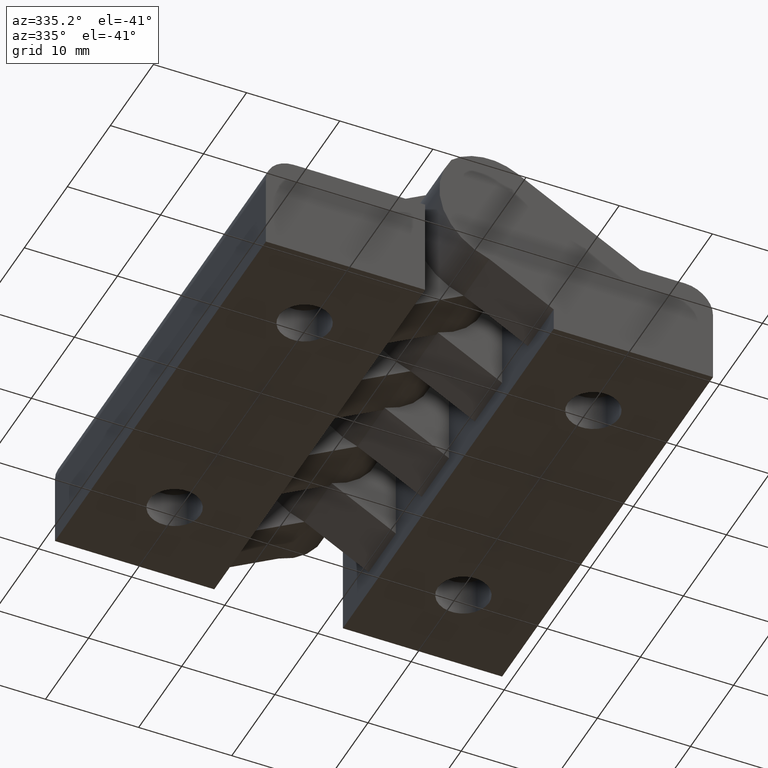
[diagram: clean part render]
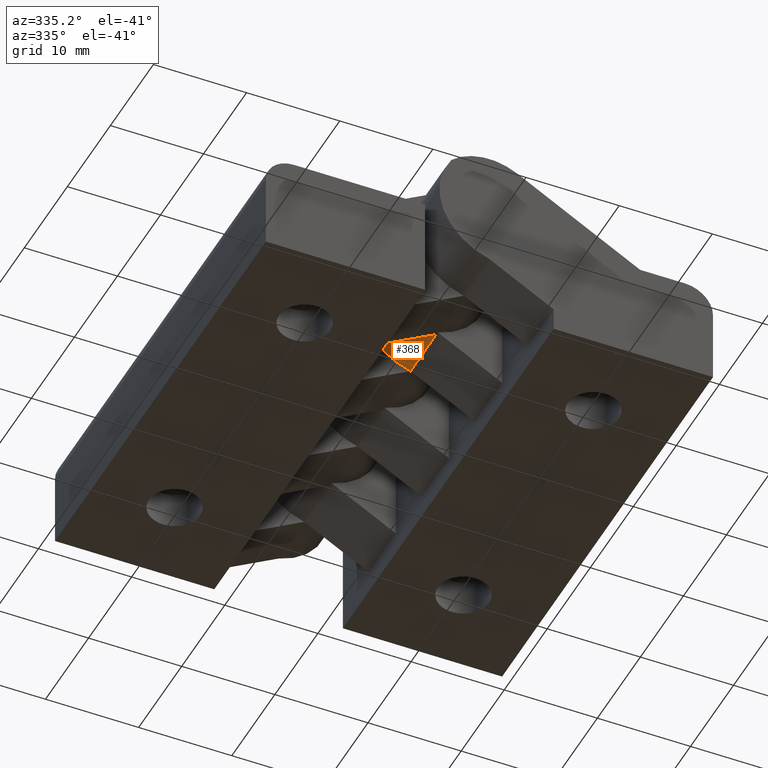
[diagram: same view with one face highlighted and labeled with its STEP entity id]
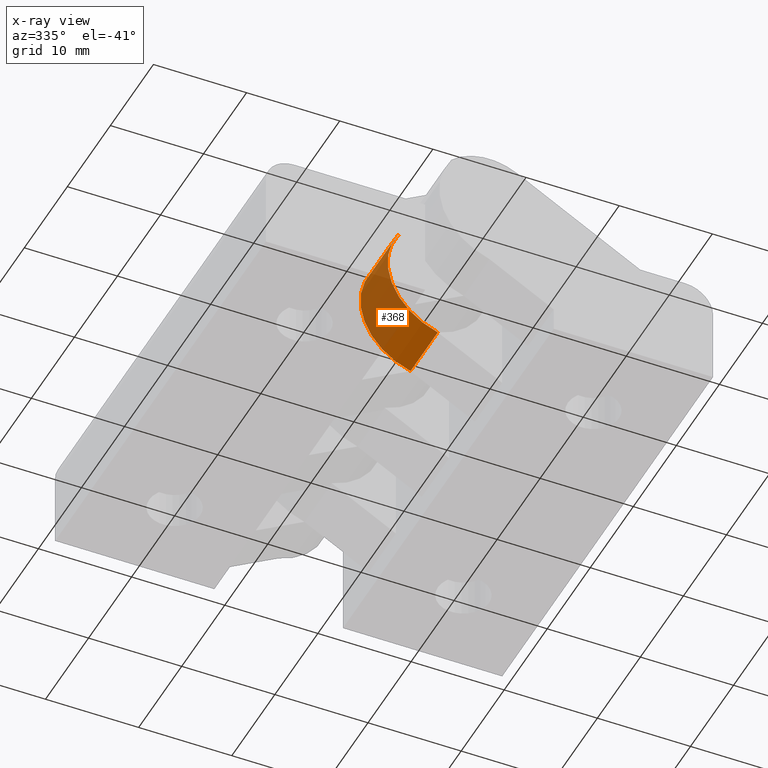
[diagram: x-ray of the same camera — body ghosted, the highlighted face saturated]
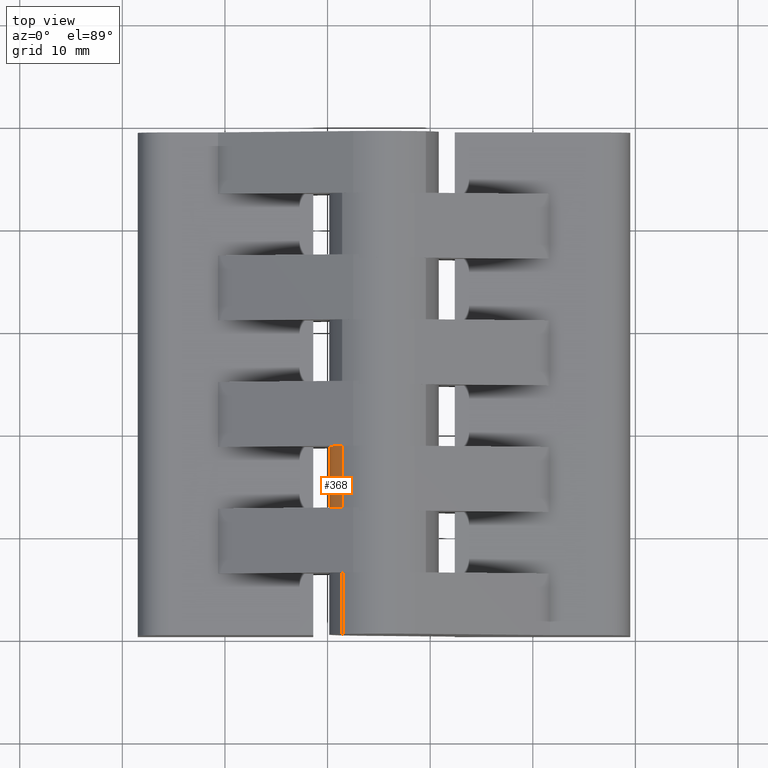
[diagram: same view with one face highlighted and labeled with its STEP entity id]
A machine part, auxiliary view. The second image highlights one B-rep face of the part: STEP entity #368.
The next image is the same camera in x-ray: the body ghosted, the highlighted face saturated — about 61% of this face is hidden behind the body in this view.
A second angle (top view) of the same face is appended — the face is thin or edge-on in the first view.
In plain terms, the highlighted cylindrical surface (partial cylindrical patch) has radius 7.4108 mm, axis along (0, -1, 0).
Its self-contained STEP definition (entity closure, byte-faithful):
#209=CARTESIAN_POINT('',(11.420340271182852,-27.600000000037646,17.811508306689461));
#210=VERTEX_POINT('',#209);
#219=CARTESIAN_POINT('',(11.420340271182852,-21.266666666704314,17.811508306689461));
#220=VERTEX_POINT('',#219);
#228=CARTESIAN_POINT('',(11.420340271182852,-21.266666666704310,17.811508306689465));
#229=DIRECTION('',(0.0,-1.0,0.0));
#230=VECTOR('',#229,6.333333333333336);
#231=LINE('',#228,#230);
#232=EDGE_CURVE('',#220,#210,#231,.T.);
#336=CARTESIAN_POINT('',(17.526384017400233,9.399999999766358,13.612043587539972));
#337=DIRECTION('',(0.0,-1.0,6.123234E-017));
#338=DIRECTION('',(-0.823943661413975,3.469864E-017,0.566671724030530));
#339=AXIS2_PLACEMENT_3D('',#336,#337,#338);
#340=CYLINDRICAL_SURFACE('',#339,7.410753953418086);
#341=CARTESIAN_POINT('',(15.499999999938154,-27.600000000037646,6.483716857382605));
#342=VERTEX_POINT('',#341);
#343=CARTESIAN_POINT('',(17.526384017400236,-27.600000000037660,13.612043587539977));
#344=DIRECTION('',(0.0,1.000000000000000,-6.123234E-017));
#345=DIRECTION('',(-0.823943661413975,3.469864E-017,0.566671724030530));
#346=AXIS2_PLACEMENT_3D('',#343,#344,#345);
#347=CIRCLE('',#346,7.410753953418086);
#348=EDGE_CURVE('',#342,#210,#347,.T.);
#349=ORIENTED_EDGE('',*,*,#348,.T.);
#350=ORIENTED_EDGE('',*,*,#232,.F.);
#351=CARTESIAN_POINT('',(15.499999999938154,-21.266666666704314,6.483716857382604));
#352=VERTEX_POINT('',#351);
#353=CARTESIAN_POINT('',(17.526384017400236,-21.266666666704317,13.612043587539977));
#354=DIRECTION('',(0.0,1.000000000000000,-6.123234E-017));
#355=DIRECTION('',(-0.823943661413975,3.469864E-017,0.566671724030530));
#356=AXIS2_PLACEMENT_3D('',#353,#354,#355);
#357=CIRCLE('',#356,7.410753953418086);
#358=EDGE_CURVE('',#352,#220,#357,.T.);
#359=ORIENTED_EDGE('',*,*,#358,.F.);
#360=CARTESIAN_POINT('',(15.499999999938154,-21.266666666704314,6.483716857382604));
#361=DIRECTION('',(0.0,-1.0,0.0));
#362=VECTOR('',#361,6.333333333333332);
#363=LINE('',#360,#362);
#364=EDGE_CURVE('',#352,#342,#363,.T.);
#365=ORIENTED_EDGE('',*,*,#364,.T.);
#366=EDGE_LOOP('',(#349,#350,#359,#365));
#367=FACE_OUTER_BOUND('',#366,.T.);
#368=ADVANCED_FACE('',(#367),#340,.T.);